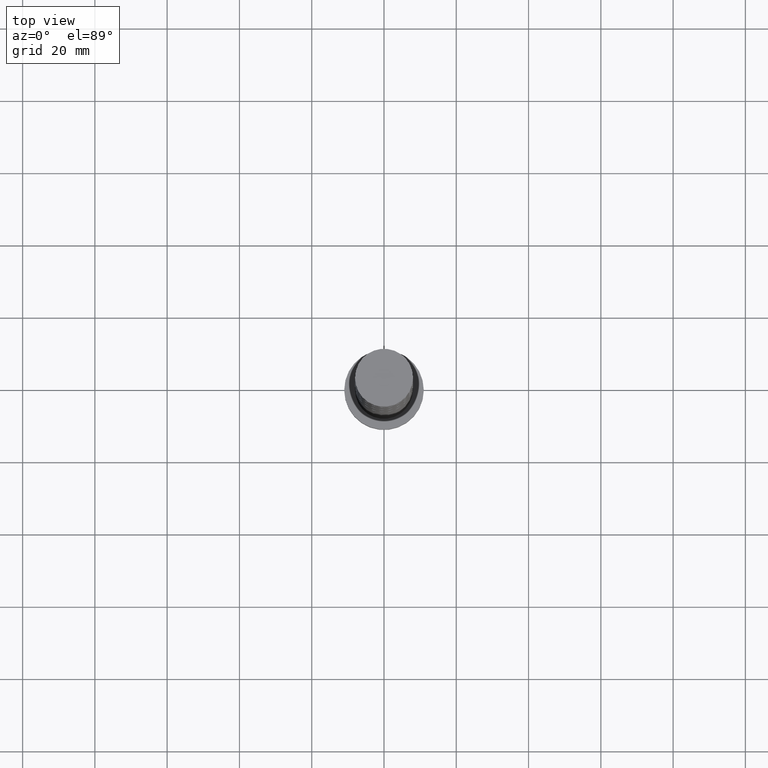
[diagram: clean part render]
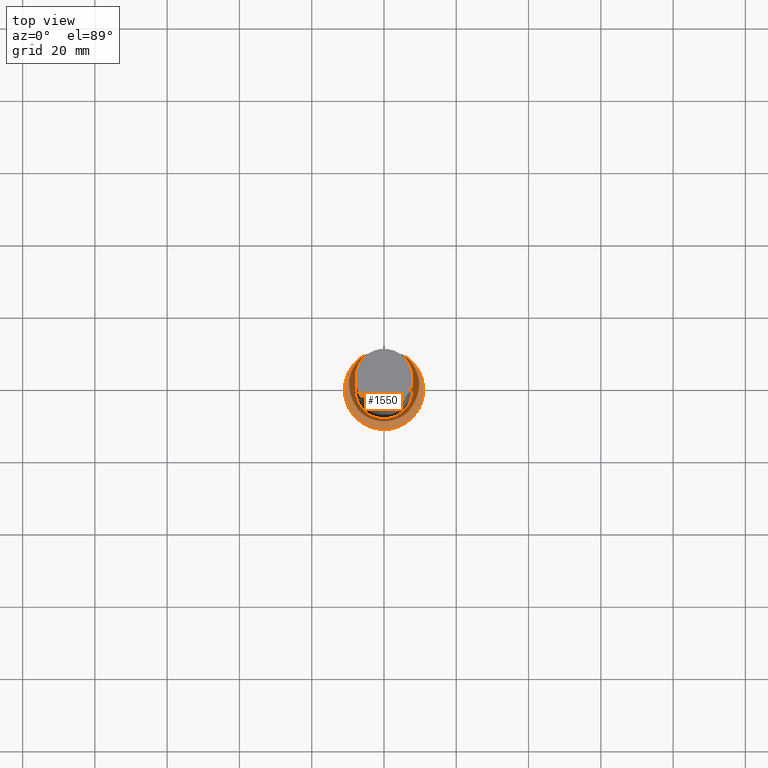
[diagram: same view with one face highlighted and labeled with its STEP entity id]
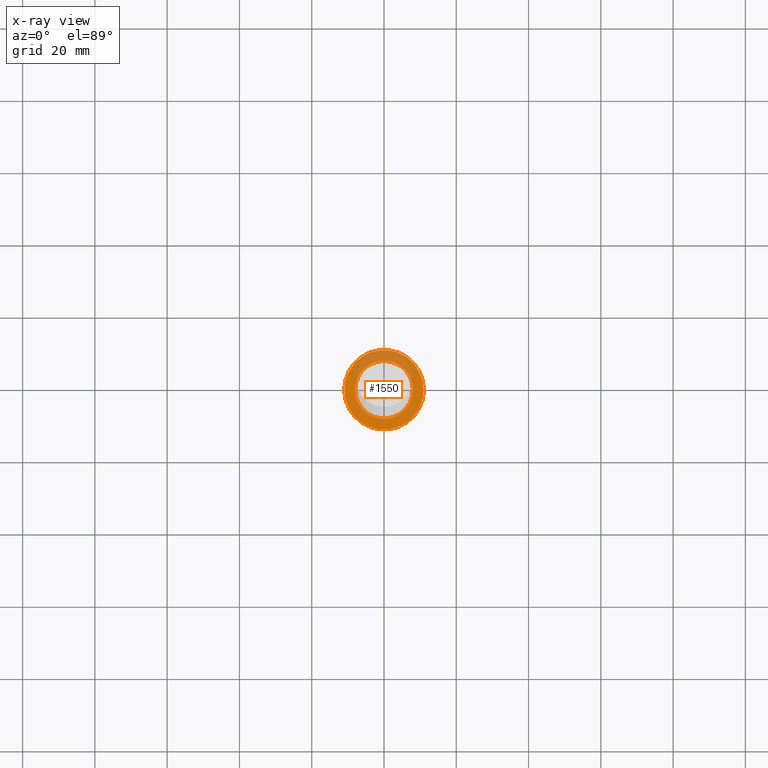
[diagram: x-ray of the same camera — body ghosted, the highlighted face saturated]
A machine part, top view. The second image highlights one B-rep face of the part: STEP entity #1550.
The next image is the same camera in x-ray: the body ghosted, the highlighted face saturated — about 29% of this face is hidden behind the body in this view.
In plain terms, the highlighted planar face has unit normal (0, 0, 1).
Its self-contained STEP definition (entity closure, byte-faithful):
#16 = CIRCLE ( 'NONE', #1123, 11.00000000000000000 ) ;
#23 = DIRECTION ( 'NONE',  ( 1.000000000000000000, 0.000000000000000000, 0.000000000000000000 ) ) ;
#60 = CARTESIAN_POINT ( 'NONE',  ( -11.00000000000000000, 0.000000000000000000, 7.000000000000000000 ) ) ;
#95 = CIRCLE ( 'NONE', #180, 8.000000000000000000 ) ;
#153 = CIRCLE ( 'NONE', #1468, 8.000000000000000000 ) ;
#167 = EDGE_CURVE ( 'NONE', #527, #1306, #95, .T. ) ;
#177 = FACE_OUTER_BOUND ( 'NONE', #1350, .T. ) ;
#180 = AXIS2_PLACEMENT_3D ( 'NONE', #303, #566, #1361 ) ;
#244 = DIRECTION ( 'NONE',  ( 0.000000000000000000, 0.000000000000000000, 1.000000000000000000 ) ) ;
#253 = VERTEX_POINT ( 'NONE', #60 ) ;
#281 = ORIENTED_EDGE ( 'NONE', *, *, #167, .F. ) ;
#303 = CARTESIAN_POINT ( 'NONE',  ( 0.000000000000000000, 0.000000000000000000, 7.000000000000000000 ) ) ;
#330 = DIRECTION ( 'NONE',  ( 1.000000000000000000, 0.000000000000000000, 0.000000000000000000 ) ) ;
#454 = VERTEX_POINT ( 'NONE', #654 ) ;
#527 = VERTEX_POINT ( 'NONE', #793 ) ;
#566 = DIRECTION ( 'NONE',  ( 0.000000000000000000, 0.000000000000000000, 1.000000000000000000 ) ) ;
#604 = DIRECTION ( 'NONE',  ( 0.000000000000000000, 0.000000000000000000, 1.000000000000000000 ) ) ;
#627 = ORIENTED_EDGE ( 'NONE', *, *, #1252, .T. ) ;
#654 = CARTESIAN_POINT ( 'NONE',  ( 11.00000000000000000, 1.347111479062088405E-15, 7.000000000000000000 ) ) ;
#703 = CARTESIAN_POINT ( 'NONE',  ( 0.000000000000000000, 0.000000000000000000, 7.000000000000000000 ) ) ;
#754 = CARTESIAN_POINT ( 'NONE',  ( -8.000000000000000000, 0.000000000000000000, 7.000000000000000000 ) ) ;
#793 = CARTESIAN_POINT ( 'NONE',  ( 8.000000000000000000, 9.797174393178825657E-16, 7.000000000000000000 ) ) ;
#841 = AXIS2_PLACEMENT_3D ( 'NONE', #1543, #604, #1125 ) ;
#898 = AXIS2_PLACEMENT_3D ( 'NONE', #703, #1247, #23 ) ;
#987 = FACE_BOUND ( 'NONE', #1076, .T. ) ;
#994 = CARTESIAN_POINT ( 'NONE',  ( 0.000000000000000000, 0.000000000000000000, 7.000000000000000000 ) ) ;
#1076 = EDGE_LOOP ( 'NONE', ( #1380, #281 ) ) ;
#1123 = AXIS2_PLACEMENT_3D ( 'NONE', #994, #1398, #330 ) ;
#1125 = DIRECTION ( 'NONE',  ( 1.000000000000000000, 0.000000000000000000, -0.000000000000000000 ) ) ;
#1247 = DIRECTION ( 'NONE',  ( 0.000000000000000000, 0.000000000000000000, 1.000000000000000000 ) ) ;
#1252 = EDGE_CURVE ( 'NONE', #253, #454, #1267, .T. ) ;
#1267 = CIRCLE ( 'NONE', #898, 11.00000000000000000 ) ;
#1269 = PLANE ( 'NONE',  #841 ) ;
#1300 = EDGE_CURVE ( 'NONE', #454, #253, #16, .T. ) ;
#1306 = VERTEX_POINT ( 'NONE', #754 ) ;
#1326 = CARTESIAN_POINT ( 'NONE',  ( 0.000000000000000000, 0.000000000000000000, 7.000000000000000000 ) ) ;
#1350 = EDGE_LOOP ( 'NONE', ( #627, #1455 ) ) ;
#1361 = DIRECTION ( 'NONE',  ( 1.000000000000000000, 0.000000000000000000, 0.000000000000000000 ) ) ;
#1380 = ORIENTED_EDGE ( 'NONE', *, *, #1641, .F. ) ;
#1398 = DIRECTION ( 'NONE',  ( 0.000000000000000000, 0.000000000000000000, 1.000000000000000000 ) ) ;
#1452 = DIRECTION ( 'NONE',  ( 1.000000000000000000, 0.000000000000000000, 0.000000000000000000 ) ) ;
#1455 = ORIENTED_EDGE ( 'NONE', *, *, #1300, .T. ) ;
#1468 = AXIS2_PLACEMENT_3D ( 'NONE', #1326, #244, #1452 ) ;
#1543 = CARTESIAN_POINT ( 'NONE',  ( 0.000000000000000000, 0.000000000000000000, 7.000000000000000000 ) ) ;
#1550 = ADVANCED_FACE ( 'NONE', ( #987, #177 ), #1269, .T. ) ;
#1641 = EDGE_CURVE ( 'NONE', #1306, #527, #153, .T. ) ;